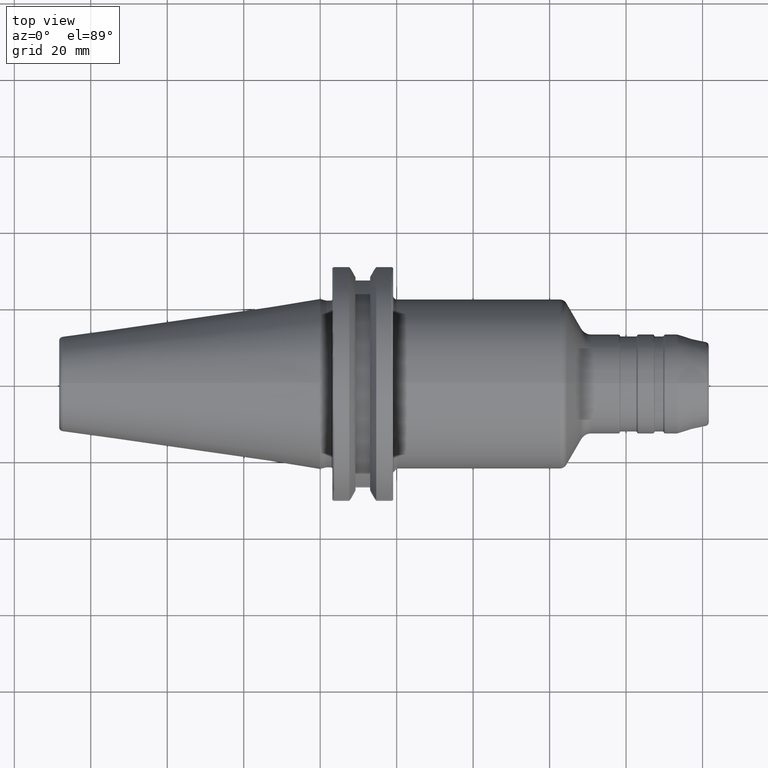
[diagram: clean part render]
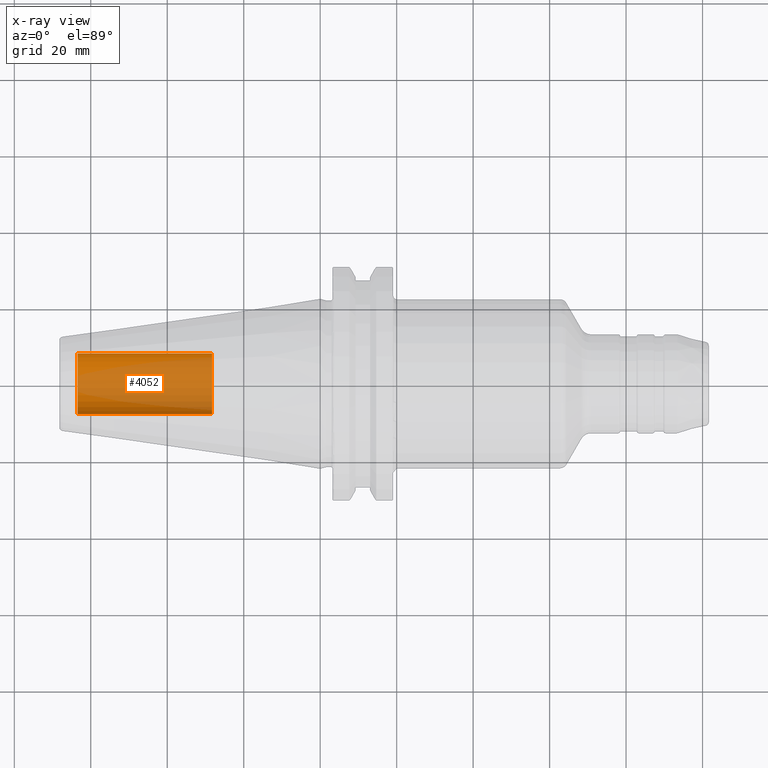
[diagram: x-ray — body ghosted, one internal face saturated and labeled with its STEP entity id]
A machine part, top view, then the same camera in x-ray: the body is ghosted and one INTERNAL B-rep face — a face not visible from any outside direction — is saturated and labeled: STEP entity #4052.
In plain terms, the highlighted cylindrical surface (edge-blend (fillet) strip) has radius 7.9375 mm, axis along (-1, 0, 0).
Its self-contained STEP definition (entity closure, byte-faithful):
#3987=CARTESIAN_POINT('',(-6.345E1,0.E0,0.E0));
#3988=DIRECTION('',(1.E0,0.E0,0.E0));
#3989=DIRECTION('',(0.E0,-1.E0,0.E0));
#3990=AXIS2_PLACEMENT_3D('',#3987,#3988,#3989);
#3997=DIRECTION('',(1.E0,0.E0,0.E0));
#3998=VECTOR('',#3997,3.52E1);
#3999=CARTESIAN_POINT('',(-6.345E1,-7.9375E0,0.E0));
#4000=LINE('',#3999,#3998);
#4001=DIRECTION('',(1.E0,0.E0,0.E0));
#4002=VECTOR('',#4001,3.52E1);
#4003=CARTESIAN_POINT('',(-6.345E1,7.9375E0,0.E0));
#4004=LINE('',#4003,#4002);
#4010=CARTESIAN_POINT('',(-2.825E1,0.E0,0.E0));
#4011=DIRECTION('',(-1.E0,0.E0,0.E0));
#4012=DIRECTION('',(0.E0,1.E0,0.E0));
#4013=AXIS2_PLACEMENT_3D('',#4010,#4011,#4012);
#4025=CARTESIAN_POINT('',(-2.825E1,7.9375E0,0.E0));
#4026=CARTESIAN_POINT('',(-2.825E1,-7.9375E0,0.E0));
#4027=VERTEX_POINT('',#4025);
#4028=VERTEX_POINT('',#4026);
#4029=CARTESIAN_POINT('',(-6.345E1,7.9375E0,0.E0));
#4030=CARTESIAN_POINT('',(-6.345E1,-7.9375E0,0.E0));
#4031=VERTEX_POINT('',#4029);
#4032=VERTEX_POINT('',#4030);
#4037=CARTESIAN_POINT('',(-1.149377256037E1,0.E0,0.E0));
#4038=DIRECTION('',(-1.E0,0.E0,0.E0));
#4039=DIRECTION('',(0.E0,1.E0,0.E0));
#4040=AXIS2_PLACEMENT_3D('',#4037,#4038,#4039);
#4041=CYLINDRICAL_SURFACE('',#4040,7.9375E0);
#4043=ORIENTED_EDGE('',*,*,#4042,.T.);
#4045=ORIENTED_EDGE('',*,*,#4044,.T.);
#4047=ORIENTED_EDGE('',*,*,#4046,.T.);
#4049=ORIENTED_EDGE('',*,*,#4048,.F.);
#4050=EDGE_LOOP('',(#4043,#4045,#4047,#4049));
#4051=FACE_OUTER_BOUND('',#4050,.F.);
#4052=ADVANCED_FACE('',(#4051),#4041,.F.);
#3991=CIRCLE('',#3990,7.9375E0);
#4014=CIRCLE('',#4013,7.9375E0);
#4042=EDGE_CURVE('',#4032,#4031,#3991,.T.);
#4044=EDGE_CURVE('',#4031,#4027,#4004,.T.);
#4046=EDGE_CURVE('',#4027,#4028,#4014,.T.);
#4048=EDGE_CURVE('',#4032,#4028,#4000,.T.);